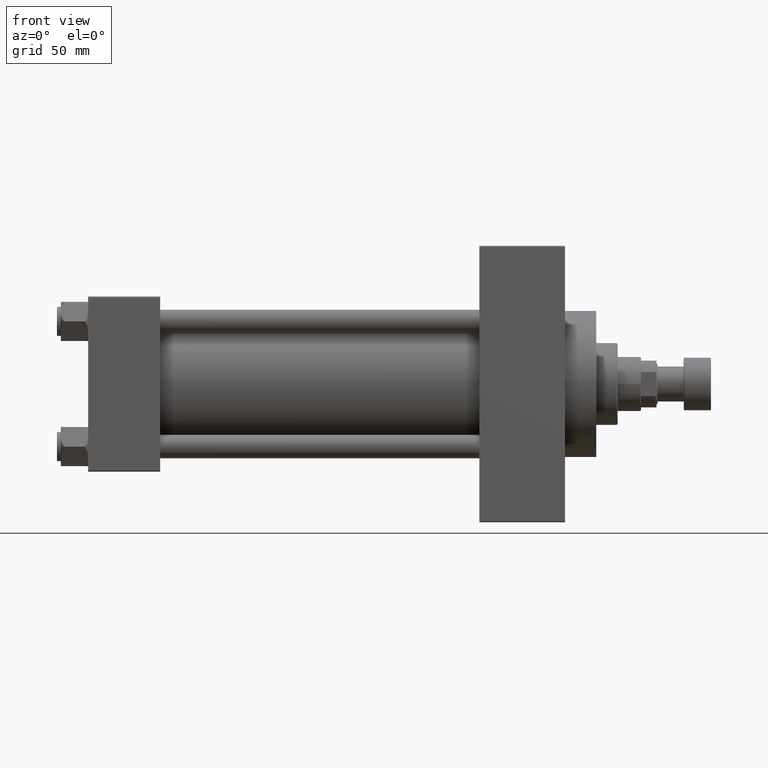
[diagram: clean part render]
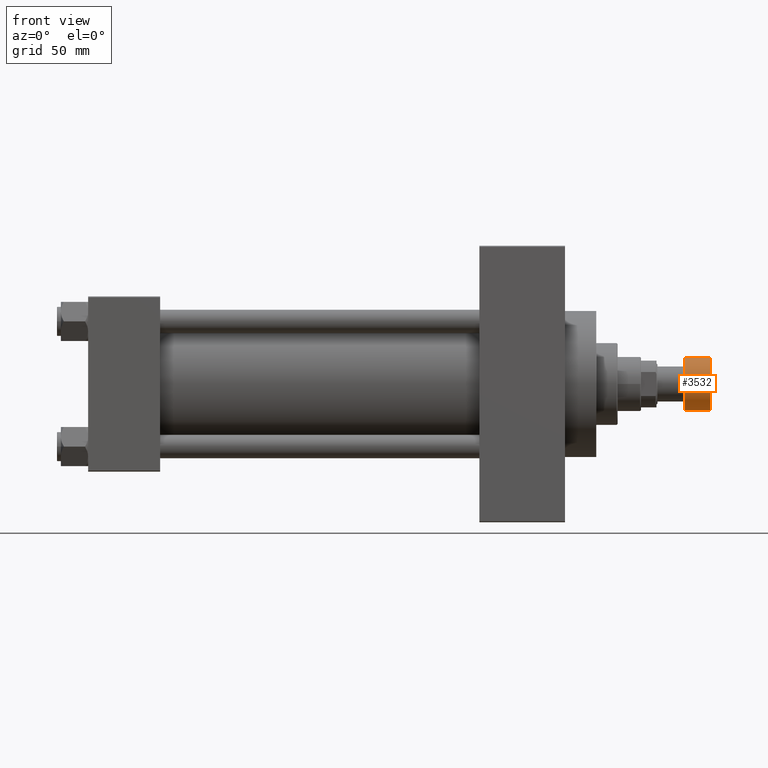
[diagram: same view with one face highlighted and labeled with its STEP entity id]
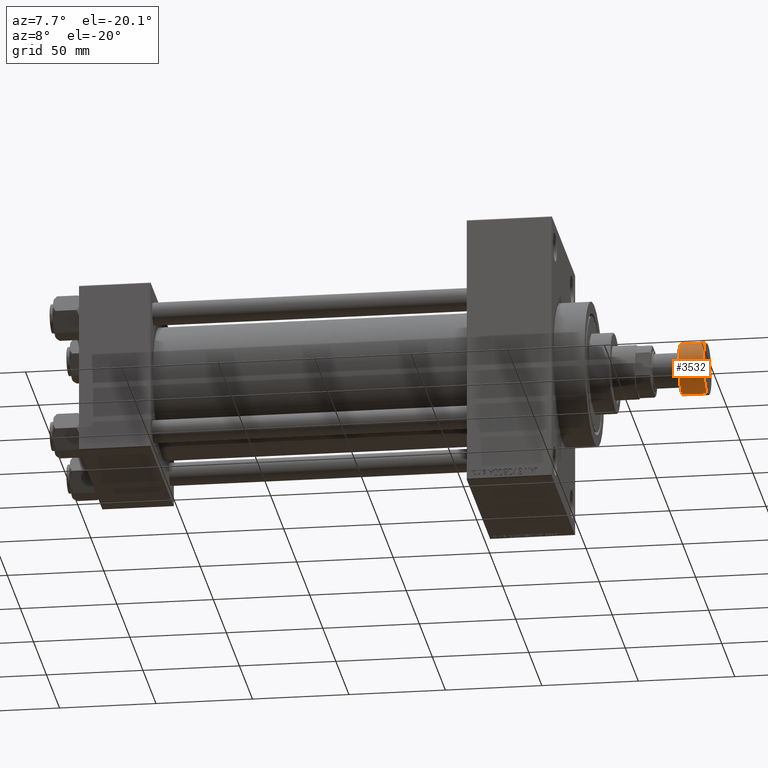
[diagram: same view with one face highlighted and labeled with its STEP entity id]
A machine part, front view. The second image highlights one B-rep face of the part: STEP entity #3532.
A second angle (auxiliary view) of the same face is appended — the face is thin or edge-on in the first view.
In plain terms, the highlighted cylindrical surface (edge-blend (fillet) strip) has radius 13.5 mm, axis along (1, 0, 0).
Its self-contained STEP definition (entity closure, byte-faithful):
#641 = AXIS2_PLACEMENT_3D ( 'NONE', #1703, #28071, #35351 ) ;
#1703 = CARTESIAN_POINT ( 'NONE',  ( 0.000000000000000000, 0.000000000000000000, -13.50000000000000000 ) ) ;
#2359 = EDGE_LOOP ( 'NONE', ( #33955, #9666, #21936, #39823 ) ) ;
#3532 = ADVANCED_FACE ( 'NONE', ( #27952 ), #12976, .T. ) ;
#5598 = CARTESIAN_POINT ( 'NONE',  ( -13.50000000000000000, 1.653273178848926867E-15, -0.5000000000000004441 ) ) ;
#6528 = DIRECTION ( 'NONE',  ( 0.000000000000000000, 0.000000000000000000, 1.000000000000000000 ) ) ;
#8546 = LINE ( 'NONE', #30579, #23570 ) ;
#8834 = EDGE_CURVE ( 'NONE', #23564, #34302, #8546, .T. ) ;
#9666 = ORIENTED_EDGE ( 'NONE', *, *, #21716, .T. ) ;
#11749 = AXIS2_PLACEMENT_3D ( 'NONE', #27726, #39100, #30895 ) ;
#12976 = CYLINDRICAL_SURFACE ( 'NONE', #11749, 13.50000000000000000 ) ;
#14247 = CARTESIAN_POINT ( 'NONE',  ( -13.50000000000000000, 1.653273178848926867E-15, -13.50000000000000000 ) ) ;
#16118 = DIRECTION ( 'NONE',  ( 1.000000000000000000, 0.000000000000000000, 0.000000000000000000 ) ) ;
#21716 = EDGE_CURVE ( 'NONE', #23564, #47072, #30831, .T. ) ;
#21726 = CARTESIAN_POINT ( 'NONE',  ( 13.50000000000000000, 0.000000000000000000, -0.5000000000000004441 ) ) ;
#21936 = ORIENTED_EDGE ( 'NONE', *, *, #45474, .T. ) ;
#22574 = DIRECTION ( 'NONE',  ( 0.000000000000000000, 0.000000000000000000, 1.000000000000000000 ) ) ;
#23564 = VERTEX_POINT ( 'NONE', #14247 ) ;
#23570 = VECTOR ( 'NONE', #22574, 1000.000000000000000 ) ;
#23676 = AXIS2_PLACEMENT_3D ( 'NONE', #34975, #38840, #16118 ) ;
#27726 = CARTESIAN_POINT ( 'NONE',  ( 0.000000000000000000, 0.000000000000000000, -14.00000000000000000 ) ) ;
#27952 = FACE_OUTER_BOUND ( 'NONE', #2359, .T. ) ;
#28071 = DIRECTION ( 'NONE',  ( 0.000000000000000000, 0.000000000000000000, 1.000000000000000000 ) ) ;
#28324 = LINE ( 'NONE', #46488, #31466 ) ;
#30579 = CARTESIAN_POINT ( 'NONE',  ( -13.50000000000000000, 1.653273178848926867E-15, -14.00000000000000000 ) ) ;
#30831 = CIRCLE ( 'NONE', #641, 13.50000000000000000 ) ;
#30895 = DIRECTION ( 'NONE',  ( 1.000000000000000000, 0.000000000000000000, 0.000000000000000000 ) ) ;
#31424 = CIRCLE ( 'NONE', #23676, 13.50000000000000000 ) ;
#31466 = VECTOR ( 'NONE', #6528, 1000.000000000000000 ) ;
#33955 = ORIENTED_EDGE ( 'NONE', *, *, #8834, .F. ) ;
#34302 = VERTEX_POINT ( 'NONE', #5598 ) ;
#34975 = CARTESIAN_POINT ( 'NONE',  ( 0.000000000000000000, 0.000000000000000000, -0.5000000000000004441 ) ) ;
#35351 = DIRECTION ( 'NONE',  ( 1.000000000000000000, 0.000000000000000000, 0.000000000000000000 ) ) ;
#38840 = DIRECTION ( 'NONE',  ( -0.000000000000000000, -0.000000000000000000, -1.000000000000000000 ) ) ;
#39100 = DIRECTION ( 'NONE',  ( 0.000000000000000000, 0.000000000000000000, 1.000000000000000000 ) ) ;
#39823 = ORIENTED_EDGE ( 'NONE', *, *, #47412, .T. ) ;
#43989 = VERTEX_POINT ( 'NONE', #21726 ) ;
#44785 = CARTESIAN_POINT ( 'NONE',  ( 13.50000000000000000, 0.000000000000000000, -13.50000000000000000 ) ) ;
#45474 = EDGE_CURVE ( 'NONE', #47072, #43989, #28324, .T. ) ;
#46488 = CARTESIAN_POINT ( 'NONE',  ( 13.50000000000000000, 0.000000000000000000, -14.00000000000000000 ) ) ;
#47072 = VERTEX_POINT ( 'NONE', #44785 ) ;
#47412 = EDGE_CURVE ( 'NONE', #43989, #34302, #31424, .T. ) ;